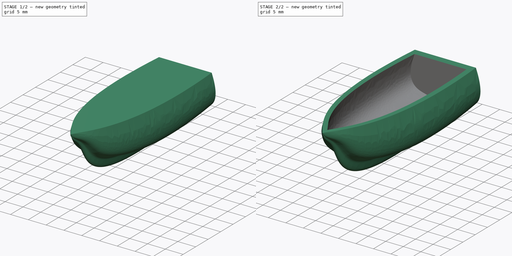
[diagram: build sequence overview — one tinted view per stage of 2, left to right]
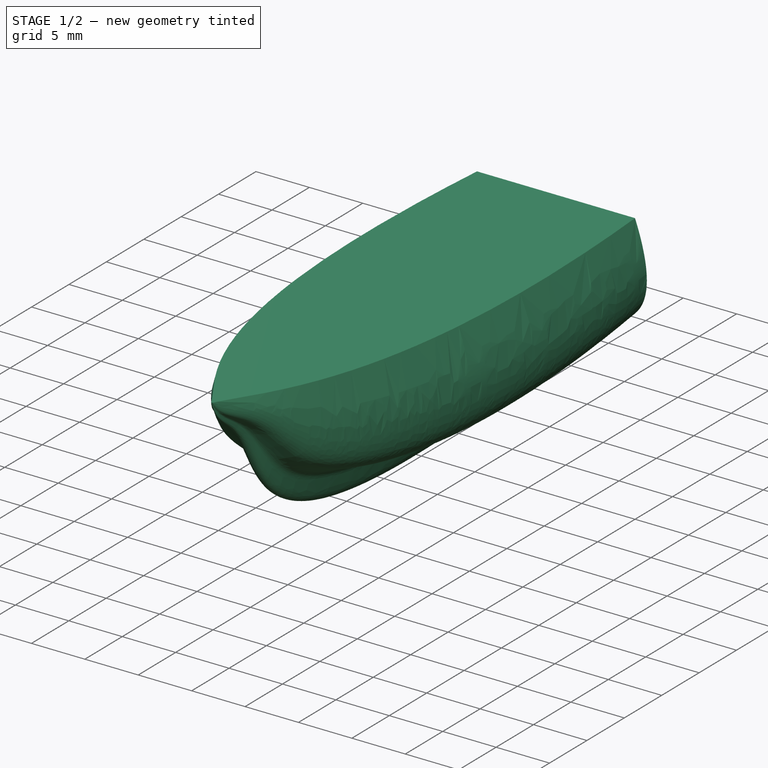
[diagram: stage 1 of 2 — iso view after this stage's code; geometry added in this stage tinted green]
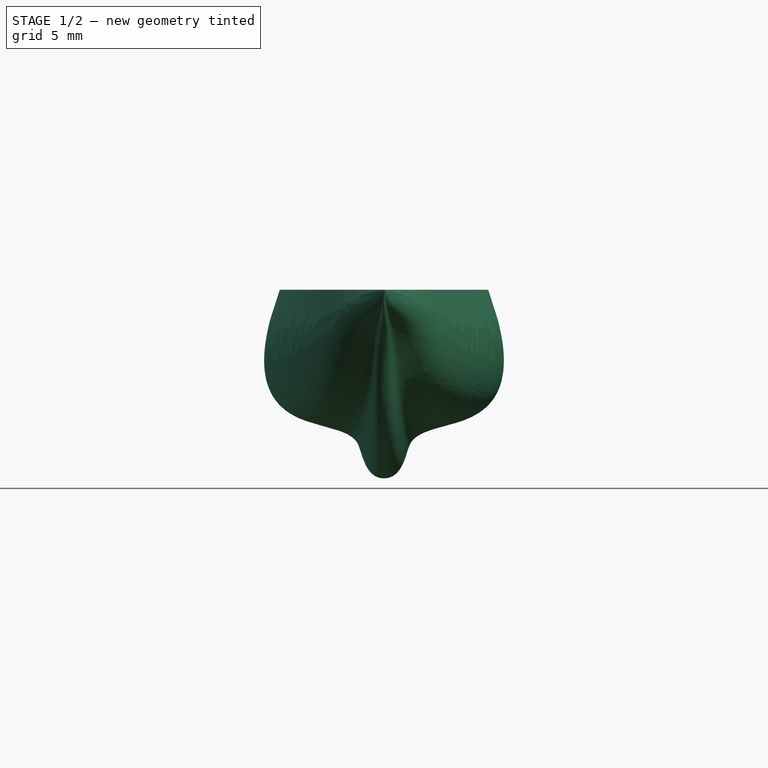
[diagram: stage 1 of 2 — front view after this stage's code; geometry added in this stage tinted green]
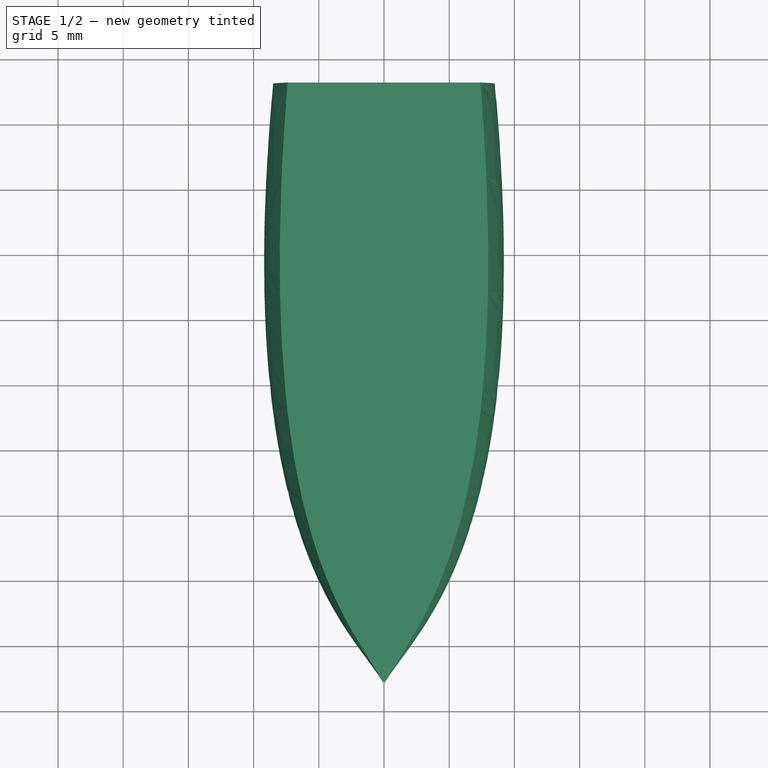
[diagram: stage 1 of 2 — top view after this stage's code; geometry added in this stage tinted green]
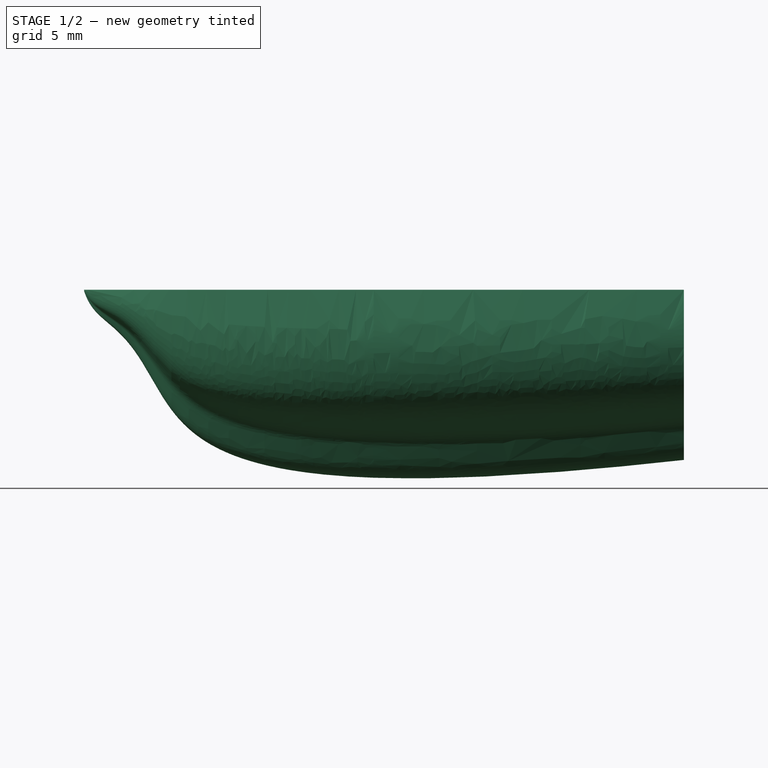
[diagram: stage 1 of 2 — right view after this stage's code; geometry added in this stage tinted green]
FCSTD DOCUMENT  (FreeCAD 1.0R39285 (Git))
Label: boat_curved_shapes
License: All rights reserved
LicenseURL: https://en.wikipedia.org/wiki/All_rights_reserved
objects: Sketcher::SketchObject×4, PartDesign::Body×2, Part::FeaturePython×2, Part::Cut×1, PartDesign::FeatureBase×1
note: 15 computed .brp shape members not serialized (recipe doc carries the construction recipe); baked Part::Feature solids carry a one-line shape summary decoded from their .brp

FEATURE [Sketcher::SketchObject] Sketch  label="hull_stern"
  ArcFitTolerance = 1e-06
  AttachmentOffset = pos=(0,0,-25) rot=(0,0,1;0rad)
  AttachmentSupport = -> [XZ_Plane]
  FullyConstrained = false
  MakeInternals = false
  MapMode = 5
  Placement = pos=(0,25,-5.6e-15) rot=(1,0,0;1.5708rad)
  sketch-geometry (23):
    g0-g5: Circle [constr] x6 (B-spline internal-alignment scaffolding for g6; pole/knot coordinates omitted)
    g6: BSplineCurve PolesCount=6 KnotsCount=4 Degree=3 IsPeriodic=0
    g7-g10: GeomPoint [constr] x4 (B-spline internal-alignment scaffolding for g6; pole/knot coordinates omitted)
    g11-g16: Circle [constr] x6 (B-spline internal-alignment scaffolding for g17; pole/knot coordinates omitted)
    g17: BSplineCurve PolesCount=6 KnotsCount=4 Degree=3 IsPeriodic=0
    g18-g21: GeomPoint [constr] x4 (B-spline internal-alignment scaffolding for g17; pole/knot coordinates omitted)
    g22: LineSegment StartX=-10 StartY=0 StartZ=0 EndX=10 EndY=0 EndZ=0
  constraints (16):
    c: Weight(g0) = 1
    c: Equal(g0, g1-g5) x5
    c: InternalAlignment(g0-g5 -> g6) x6
    c: InternalAlignment(g7-g10 -> g6) x4
    c: PointOnObject(g0,g-1)
    c: PointOnObject(g5,g-2)
    c: Horizontal(g4,g6)
    c: DistanceX(g6,g-1) = 10
    c: DistanceY(g6,g-1) = 15
    c: Weight(g11) = 1
    c: Equal(g11, g12-g16) x5
    c: InternalAlignment(g11-g16 -> g17) x6
    c: InternalAlignment(g18-g21 -> g17) x4
    c: Coincident(g22,g6)
    c: Coincident(g22,g17)
    c: Horizontal(g22)
FEATURE [Sketcher::SketchObject] Sketch001  label="hull_bow"
  ArcFitTolerance = 1e-06
  AttachmentOffset = pos=(0,0,25) rot=(0,0,1;0rad)
  AttachmentSupport = -> [XZ_Plane]
  FullyConstrained = true
  MakeInternals = false
  MapMode = 5
  Placement = pos=(0,-25,5.6e-15) rot=(1,0,0;1.5708rad)
  sketch-geometry (4):
    g0: ArcOfCircle CenterX=0 CenterY=0 CenterZ=0 NormalX=0 NormalY=0 NormalZ=1 AngleXU=0 Radius=0.1 StartAngle=3.14159 EndAngle=6.28319
    g1: LineSegment StartX=-0.1 StartY=0 StartZ=0 EndX=0.1 EndY=0 EndZ=0
    g2: LineSegment StartX=-0.1 StartY=0 StartZ=0 EndX=0.1 EndY=0 EndZ=0
    g3: LineSegment StartX=-0.1 StartY=0 StartZ=0 EndX=0.1 EndY=0 EndZ=0
  constraints (10):
    c: Coincident(g0,g-1)
    c: Radius(g0) = 0.1
    c: Coincident(g1,g0)
    c: Coincident(g1,g0)
    c: Coincident(g2,g0)
    c: Coincident(g2,g0)
    c: Coincident(g3,g0)
    c: Coincident(g3,g0)
    c: Horizontal(g3)
    c: PointOnObject(g0,g1)
FEATURE [Sketcher::SketchObject] Sketch002  label="hull_xy"
  ArcFitTolerance = 1e-06
  AttachmentSupport = -> [XY_Plane]
  ExternalGeometry = -> [Sketch,Sketch001]
  FullyConstrained = false
  MakeInternals = false
  MapMode = 5
  sketch-geometry (14):
    g0-g3: Circle [constr] x4 (B-spline internal-alignment scaffolding for g4; pole/knot coordinates omitted)
    g4: BSplineCurve PolesCount=4 KnotsCount=2 Degree=3 IsPeriodic=0
    g5: GeomPoint [constr] X=-10 Y=25 Z=0
    g6: GeomPoint [constr] X=-0.1 Y=-25 Z=0
    g7-g10: Circle [constr] x4 (B-spline internal-alignment scaffolding for g11; pole/knot coordinates omitted)
    g11: BSplineCurve PolesCount=4 KnotsCount=2 Degree=3 IsPeriodic=0
    g12: GeomPoint [constr] X=10 Y=25 Z=0
    g13: GeomPoint [constr] X=0.1 Y=-25 Z=0
  constraints (18):
    c: Weight(g0) = 1
    c: Equal(g0,g1)
    c: Equal(g0,g2)
    c: Equal(g0,g3)
    c: InternalAlignment(g0-g3 -> g4) x4
    c: InternalAlignment(g5,g4)
    c: InternalAlignment(g6,g4)
    c: Coincident(g0,g-3)
    c: Coincident(g3,g-4)
    c: Weight(g7) = 1
    c: Equal(g7,g8)
    c: Equal(g7,g9)
    c: Equal(g7,g10)
    c: InternalAlignment(g7-g10 -> g11) x4
    c: InternalAlignment(g12,g11)
    c: InternalAlignment(g13,g11)
    c: Coincident(g11,g-3)
    c: Coincident(g11,g-4)
FEATURE [Sketcher::SketchObject] Sketch003  label="hull_yz"
  ArcFitTolerance = 1e-06
  AttachmentSupport = -> [YZ_Plane]
  ExternalGeometry = -> [Sketch,Sketch001]
  FullyConstrained = false
  MakeInternals = false
  MapMode = 5
  Placement = pos=(0,0,0) rot=(0.57735,0.57735,0.57735;2.0944rad)
  sketch-geometry (10):
    g0: Circle [constr] CenterX=25 CenterY=-15 CenterZ=0 NormalX=0 NormalY=0 NormalZ=1 AngleXU=0 Radius=1
    g1: Circle [constr] CenterX=-25 CenterY=-0.1 CenterZ=0 NormalX=0 NormalY=0 NormalZ=1 AngleXU=0 Radius=1
    g2: BSplineCurve PolesCount=5 KnotsCount=3 Degree=3 IsPeriodic=0
    g3: GeomPoint [constr] X=25 Y=-15 Z=0
    g4: GeomPoint [constr] X=-25 Y=-0.1 Z=0
    g5: Circle [constr] CenterX=-25.1516 CenterY=-20.9217 CenterZ=0 NormalX=0 NormalY=0 NormalZ=1 AngleXU=0 Radius=1
    g6: Circle [constr] CenterX=-13.703 CenterY=-8.42821 CenterZ=0 NormalX=0 NormalY=0 NormalZ=1 AngleXU=0 Radius=1
    g7: Circle [constr] CenterX=-25 CenterY=-1.48639 CenterZ=0 NormalX=0 NormalY=0 NormalZ=1 AngleXU=0 Radius=1
    g8: GeomPoint [constr] X=-23.6026 Y=-2.43082 Z=0
    g9: LineSegment StartX=-25 StartY=0 StartZ=0 EndX=25.0049 EndY=0 EndZ=0
  constraints (18):
    c: Weight(g0) = 1
    c: Equal(g0,g1)
    c: InternalAlignment(g0,g2)
    c: InternalAlignment(g1,g2)
    c: InternalAlignment(g3,g2)
    c: InternalAlignment(g4,g2)
    c: Coincident(g0,g-3)
    c: Coincident(g1,g-4)
    c: InternalAlignment(g5,g2)
    c: Equal(g5,g0)
    c: InternalAlignment(g6,g2)
    c: Equal(g6,g0)
    c: InternalAlignment(g7,g2)
    c: Equal(g7,g0)
    c: InternalAlignment(g8,g2)
    c: Vertical(g2,g7)
    c: Coincident(g9,g-4)
    c: Horizontal(g9)
FEATURE [PartDesign::Body] Body
  AllowCompound = false
  Group = -> [Sketch,Sketch001,Sketch002,Sketch003]
  Origin = -> Origin
FEATURE [Part::FeaturePython] CurvedArray  # WARN: FeaturePython — macro-defined, semantics opaque (R4)
  Axis = (0,1,0)
  Base = -> Sketch
  Distribution = 0
  DistributionReverse = false
  Hullcurves = -> [Sketch002,Sketch003]
  Items = 30
  KeepBase = 0
  LoftMaxDegree = 5
  MaxLoftSize = 16
  OffsetEnd = 0
  OffsetStart = 0
  Solid = true
  Surface = false
  Twist = 0
FEATURE [Part::FeaturePython] Clone  label="CurvedArray001"  # Draft clone (typed FeaturePython)
  AttacherType = Attacher::AttachEngine3D
  Fuse = false
  Objects = -> [CurvedArray]
  Scale = (0.85,0.92,0.87)
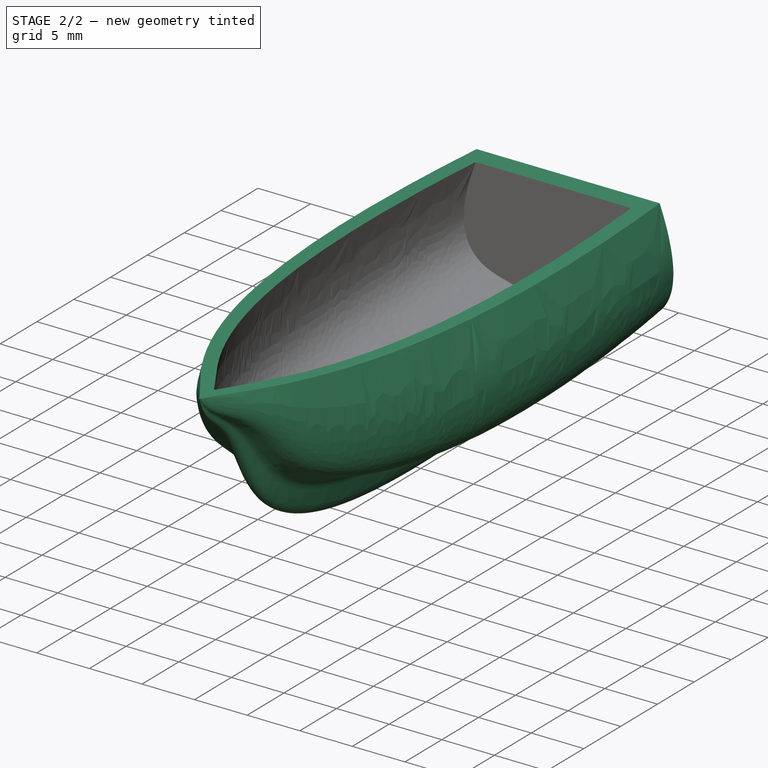
[diagram: stage 2 of 2 — iso view after this stage's code; geometry added in this stage tinted green]
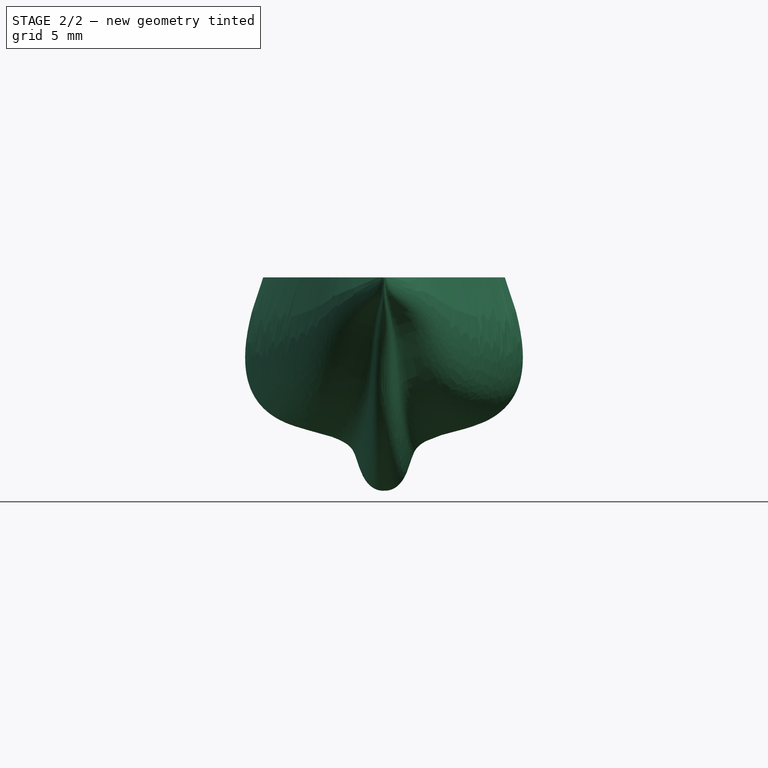
[diagram: stage 2 of 2 — front view after this stage's code; geometry added in this stage tinted green]
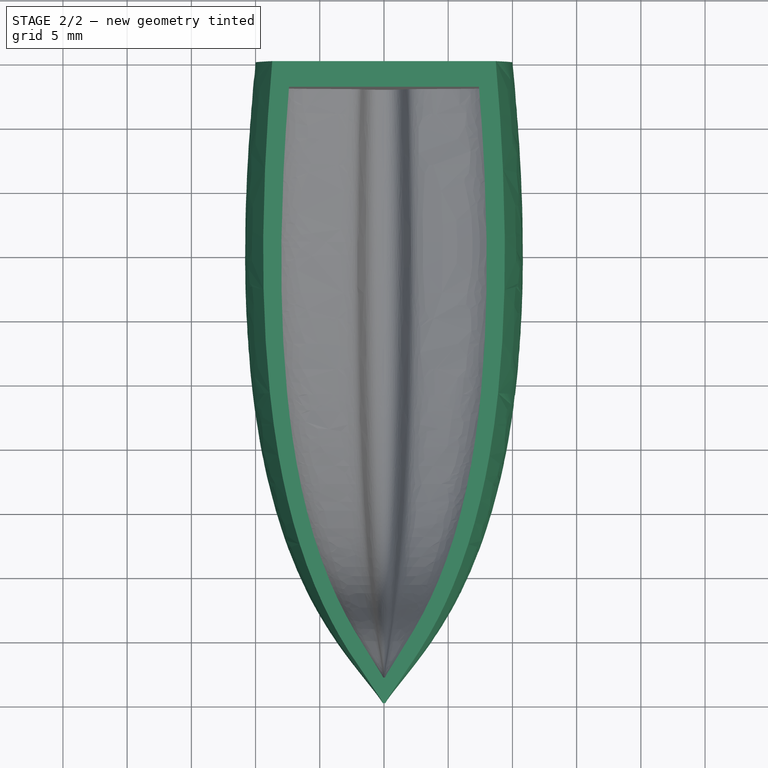
[diagram: stage 2 of 2 — top view after this stage's code; geometry added in this stage tinted green]
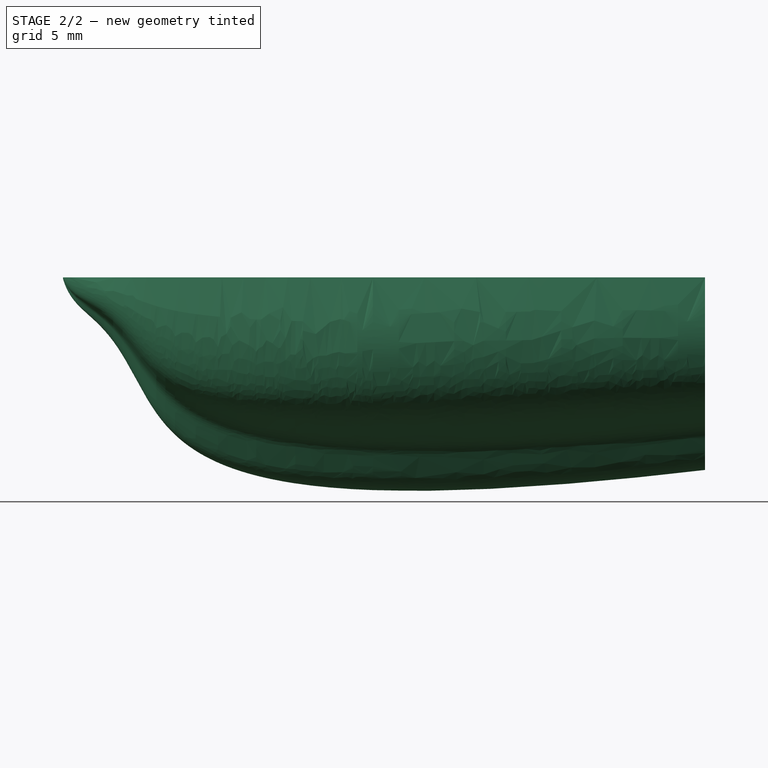
[diagram: stage 2 of 2 — right view after this stage's code; geometry added in this stage tinted green]
FEATURE [Part::Cut] Cut
  Base = -> CurvedArray
  Tool = -> Clone
FEATURE [PartDesign::FeatureBase] BaseFeature
  BaseFeature = -> Cut
  Suppressed = false
FEATURE [PartDesign::Body] Body001
  AllowCompound = false
  BaseFeature = -> Cut
  Group = -> [BaseFeature]
  Origin = -> Origin001
  Tip = -> BaseFeature
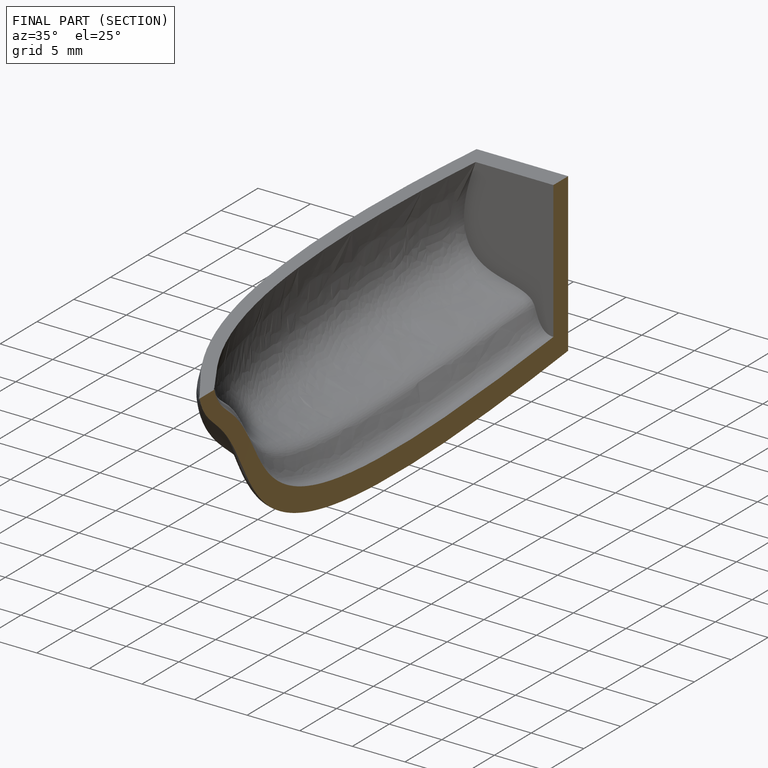
[diagram: finished part — half-section view (interior)]
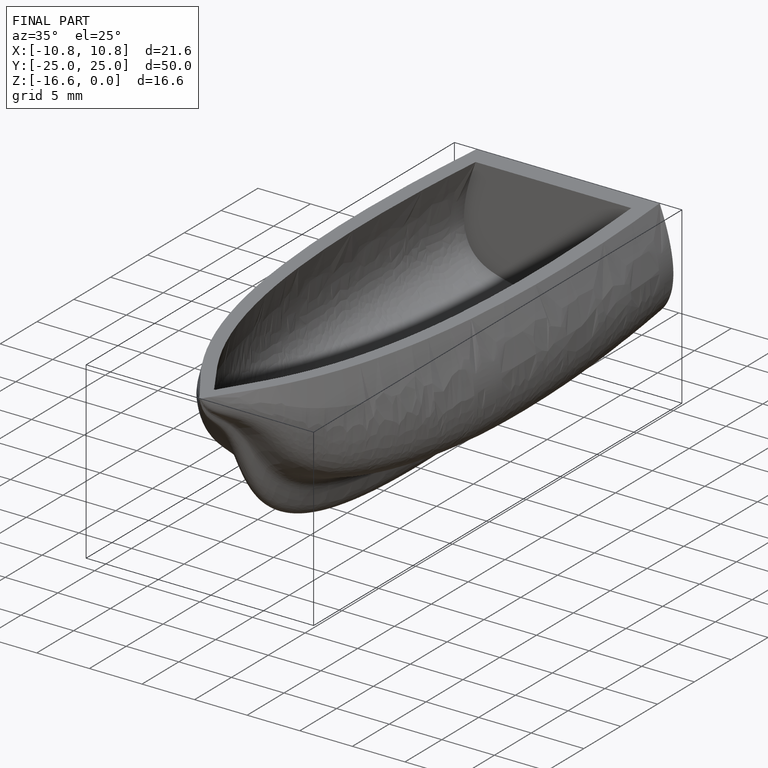
[diagram: finished part — iso view with bounding-box wireframe]
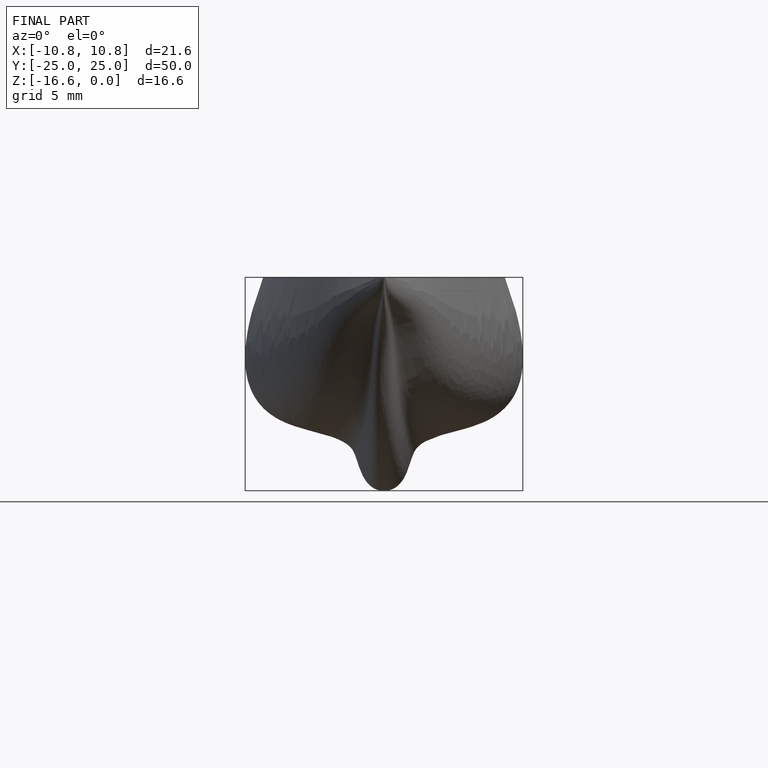
[diagram: finished part — front view with bounding-box wireframe]
